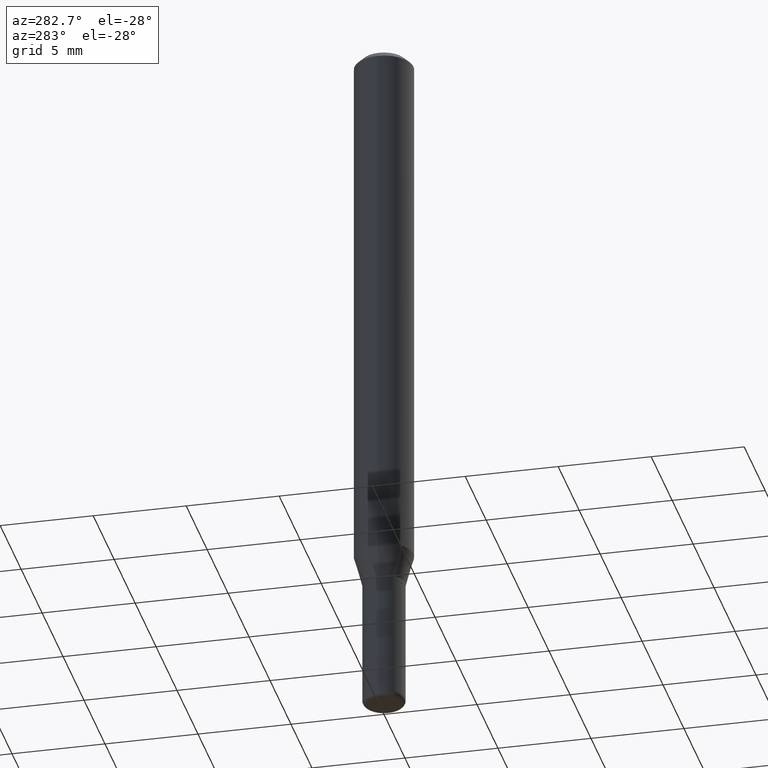
[diagram: clean part render]
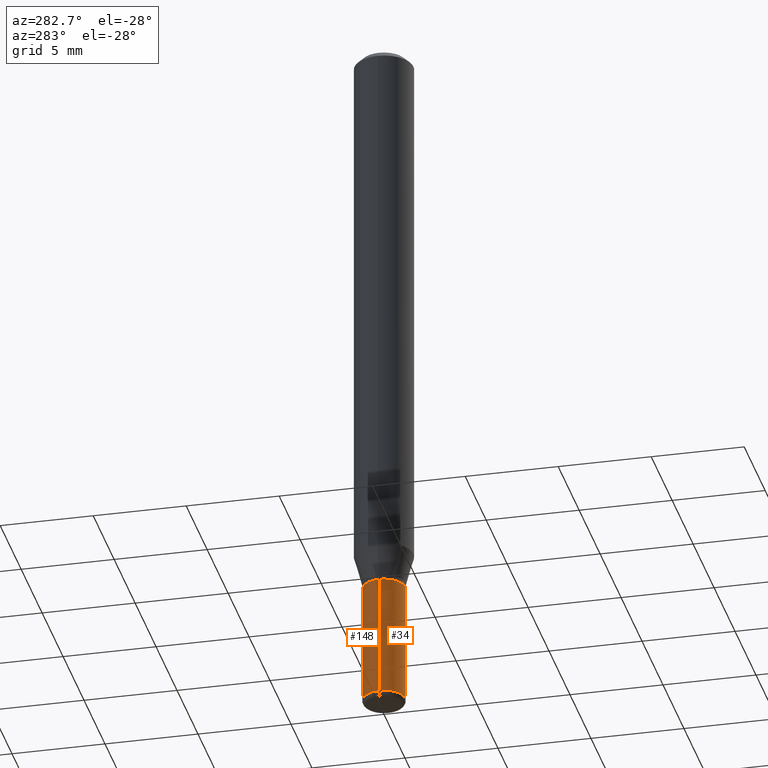
[diagram: same view with one multi-face feature highlighted, each face labeled with its STEP entity id]
A machine part, auxiliary view. The highlighted faces form ONE feature: a constant-radius fillet chain: 2 tangent blend faces with common blend radius 1.143 mm. The faces share edges in the B-rep.
Their STEP definitions:
[1] entity #34 (Cylinder):
#6 = FACE_OUTER_BOUND ( 'NONE', #305, .T. ) ;
#8 = AXIS2_PLACEMENT_3D ( 'NONE', #392, #224, #498 ) ;
#22 = ORIENTED_EDGE ( 'NONE', *, *, #477, .T. ) ;
#25 = DIRECTION ( 'NONE',  ( -2.445468806185136597E-29, 3.491481338843145583E-15, 1.000000000000000000 ) ) ;
#26 = EDGE_CURVE ( 'NONE', #141, #43, #506, .T. ) ;
#34 = ADVANCED_FACE ( 'NONE', ( #6 ), #289, .T. ) ;
#43 = VERTEX_POINT ( 'NONE', #311 ) ;
#56 = LINE ( 'NONE', #66, #154 ) ;
#66 = CARTESIAN_POINT ( 'NONE',  ( 0.04499999999999997058, -3.142333204958818343E-16, 2.194279549108169565E-30 ) ) ;
#75 = CARTESIAN_POINT ( 'NONE',  ( -0.04499999999999997058, 3.197442310920448746E-16, -2.213520790614706158E-30 ) ) ;
#95 = AXIS2_PLACEMENT_3D ( 'NONE', #344, #418, #421 ) ;
#107 = LINE ( 'NONE', #75, #113 ) ;
#113 = VECTOR ( 'NONE', #195, 39.37007874015748143 ) ;
#119 = EDGE_CURVE ( 'NONE', #462, #141, #107, .T. ) ;
#121 = CARTESIAN_POINT ( 'NONE',  ( -0.04500000000000000527, -4.428670389734633666E-15, -1.230000000000000204 ) ) ;
#141 = VERTEX_POINT ( 'NONE', #121 ) ;
#154 = VECTOR ( 'NONE', #456, 39.37007874015748143 ) ;
#195 = DIRECTION ( 'NONE',  ( -2.445468806185136877E-29, 3.491481338843145188E-15, 1.000000000000000000 ) ) ;
#224 = DIRECTION ( 'NONE',  ( -2.445468806185136597E-29, 3.491481338843145583E-15, 1.000000000000000000 ) ) ;
#253 = VERTEX_POINT ( 'NONE', #472 ) ;
#257 = CIRCLE ( 'NONE', #95, 0.04499999999999994976 ) ;
#262 = CARTESIAN_POINT ( 'NONE',  ( -0.04499999999999994976, -4.428670389734633666E-15, -1.490000000000000213 ) ) ;
#289 = CYLINDRICAL_SURFACE ( 'NONE', #8, 0.04499999999999997058 ) ;
#305 = EDGE_LOOP ( 'NONE', ( #419, #325, #22, #466 ) ) ;
#311 = CARTESIAN_POINT ( 'NONE',  ( 0.04499999999999999833, -4.608755367272951648E-15, -1.230000000000000204 ) ) ;
#325 = ORIENTED_EDGE ( 'NONE', *, *, #510, .T. ) ;
#344 = CARTESIAN_POINT ( 'NONE',  ( 3.643748521215853910E-29, -5.202307194876288105E-15, -1.490000000000000213 ) ) ;
#357 = AXIS2_PLACEMENT_3D ( 'NONE', #431, #25, #416 ) ;
#392 = CARTESIAN_POINT ( 'NONE',  ( 0.000000000000000000, 0.000000000000000000, 0.000000000000000000 ) ) ;
#416 = DIRECTION ( 'NONE',  ( 1.000000000000000000, -6.982962677686269077E-15, 0.000000000000000000 ) ) ;
#418 = DIRECTION ( 'NONE',  ( -2.445468806185136597E-29, 3.491481338843145583E-15, 1.000000000000000000 ) ) ;
#419 = ORIENTED_EDGE ( 'NONE', *, *, #119, .F. ) ;
#421 = DIRECTION ( 'NONE',  ( 1.000000000000000000, -6.982962677686276177E-15, 0.000000000000000000 ) ) ;
#431 = CARTESIAN_POINT ( 'NONE',  ( 3.007926631607718216E-29, -4.294522046777069173E-15, -1.230000000000000204 ) ) ;
#456 = DIRECTION ( 'NONE',  ( -2.445468806185136877E-29, 3.491481338843145188E-15, 1.000000000000000000 ) ) ;
#462 = VERTEX_POINT ( 'NONE', #262 ) ;
#466 = ORIENTED_EDGE ( 'NONE', *, *, #26, .F. ) ;
#472 = CARTESIAN_POINT ( 'NONE',  ( 0.04499999999999994976, -5.516540515372169792E-15, -1.490000000000000213 ) ) ;
#477 = EDGE_CURVE ( 'NONE', #253, #43, #56, .T. ) ;
#498 = DIRECTION ( 'NONE',  ( 1.000000000000000000, -6.982962677686267499E-15, 4.876176775795935793E-29 ) ) ;
#506 = CIRCLE ( 'NONE', #357, 0.04499999999999999833 ) ;
#510 = EDGE_CURVE ( 'NONE', #462, #253, #257, .T. ) ;
[2] entity #148 (Cylinder):
#41 = DIRECTION ( 'NONE',  ( -2.445468806185136597E-29, 3.491481338843145583E-15, 1.000000000000000000 ) ) ;
#43 = VERTEX_POINT ( 'NONE', #311 ) ;
#56 = LINE ( 'NONE', #66, #154 ) ;
#66 = CARTESIAN_POINT ( 'NONE',  ( 0.04499999999999997058, -3.142333204958818343E-16, 2.194279549108169565E-30 ) ) ;
#75 = CARTESIAN_POINT ( 'NONE',  ( -0.04499999999999997058, 3.197442310920448746E-16, -2.213520790614706158E-30 ) ) ;
#82 = EDGE_CURVE ( 'NONE', #43, #141, #192, .T. ) ;
#107 = LINE ( 'NONE', #75, #113 ) ;
#113 = VECTOR ( 'NONE', #195, 39.37007874015748143 ) ;
#119 = EDGE_CURVE ( 'NONE', #462, #141, #107, .T. ) ;
#121 = CARTESIAN_POINT ( 'NONE',  ( -0.04500000000000000527, -4.428670389734633666E-15, -1.230000000000000204 ) ) ;
#133 = DIRECTION ( 'NONE',  ( 1.000000000000000000, -6.982962677686269077E-15, 0.000000000000000000 ) ) ;
#141 = VERTEX_POINT ( 'NONE', #121 ) ;
#148 = ADVANCED_FACE ( 'NONE', ( #362 ), #274, .T. ) ;
#154 = VECTOR ( 'NONE', #456, 39.37007874015748143 ) ;
#160 = ORIENTED_EDGE ( 'NONE', *, *, #242, .T. ) ;
#163 = CARTESIAN_POINT ( 'NONE',  ( 3.643748521215853910E-29, -5.202307194876288105E-15, -1.490000000000000213 ) ) ;
#172 = DIRECTION ( 'NONE',  ( -2.445468806185136597E-29, 3.491481338843145583E-15, 1.000000000000000000 ) ) ;
#177 = ORIENTED_EDGE ( 'NONE', *, *, #477, .F. ) ;
#183 = AXIS2_PLACEMENT_3D ( 'NONE', #163, #356, #319 ) ;
#192 = CIRCLE ( 'NONE', #256, 0.04499999999999999833 ) ;
#195 = DIRECTION ( 'NONE',  ( -2.445468806185136877E-29, 3.491481338843145188E-15, 1.000000000000000000 ) ) ;
#210 = CARTESIAN_POINT ( 'NONE',  ( 3.007926631607718216E-29, -4.294522046777069173E-15, -1.230000000000000204 ) ) ;
#242 = EDGE_CURVE ( 'NONE', #253, #462, #459, .T. ) ;
#253 = VERTEX_POINT ( 'NONE', #472 ) ;
#256 = AXIS2_PLACEMENT_3D ( 'NONE', #210, #172, #133 ) ;
#262 = CARTESIAN_POINT ( 'NONE',  ( -0.04499999999999994976, -4.428670389734633666E-15, -1.490000000000000213 ) ) ;
#274 = CYLINDRICAL_SURFACE ( 'NONE', #294, 0.04499999999999997058 ) ;
#294 = AXIS2_PLACEMENT_3D ( 'NONE', #403, #41, #470 ) ;
#311 = CARTESIAN_POINT ( 'NONE',  ( 0.04499999999999999833, -4.608755367272951648E-15, -1.230000000000000204 ) ) ;
#319 = DIRECTION ( 'NONE',  ( 1.000000000000000000, -6.982962677686276177E-15, 0.000000000000000000 ) ) ;
#349 = ORIENTED_EDGE ( 'NONE', *, *, #119, .T. ) ;
#356 = DIRECTION ( 'NONE',  ( -2.445468806185136597E-29, 3.491481338843145583E-15, 1.000000000000000000 ) ) ;
#362 = FACE_OUTER_BOUND ( 'NONE', #485, .T. ) ;
#403 = CARTESIAN_POINT ( 'NONE',  ( 0.000000000000000000, 0.000000000000000000, 0.000000000000000000 ) ) ;
#456 = DIRECTION ( 'NONE',  ( -2.445468806185136877E-29, 3.491481338843145188E-15, 1.000000000000000000 ) ) ;
#459 = CIRCLE ( 'NONE', #183, 0.04499999999999994976 ) ;
#462 = VERTEX_POINT ( 'NONE', #262 ) ;
#470 = DIRECTION ( 'NONE',  ( 1.000000000000000000, -6.982962677686267499E-15, 4.876176775795935793E-29 ) ) ;
#472 = CARTESIAN_POINT ( 'NONE',  ( 0.04499999999999994976, -5.516540515372169792E-15, -1.490000000000000213 ) ) ;
#477 = EDGE_CURVE ( 'NONE', #253, #43, #56, .T. ) ;
#485 = EDGE_LOOP ( 'NONE', ( #160, #349, #512, #177 ) ) ;
#512 = ORIENTED_EDGE ( 'NONE', *, *, #82, .F. ) ;